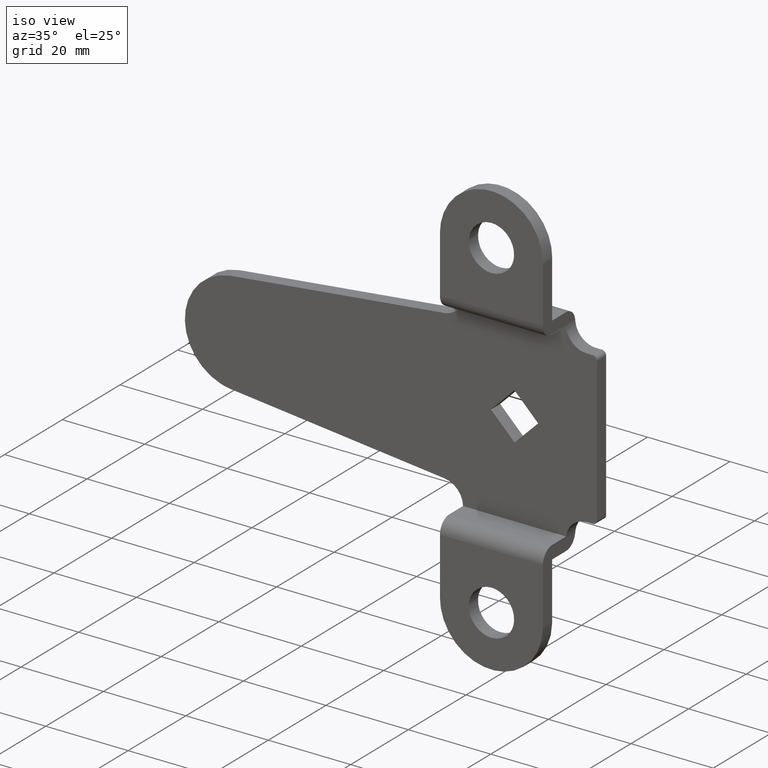
[diagram: clean part render]
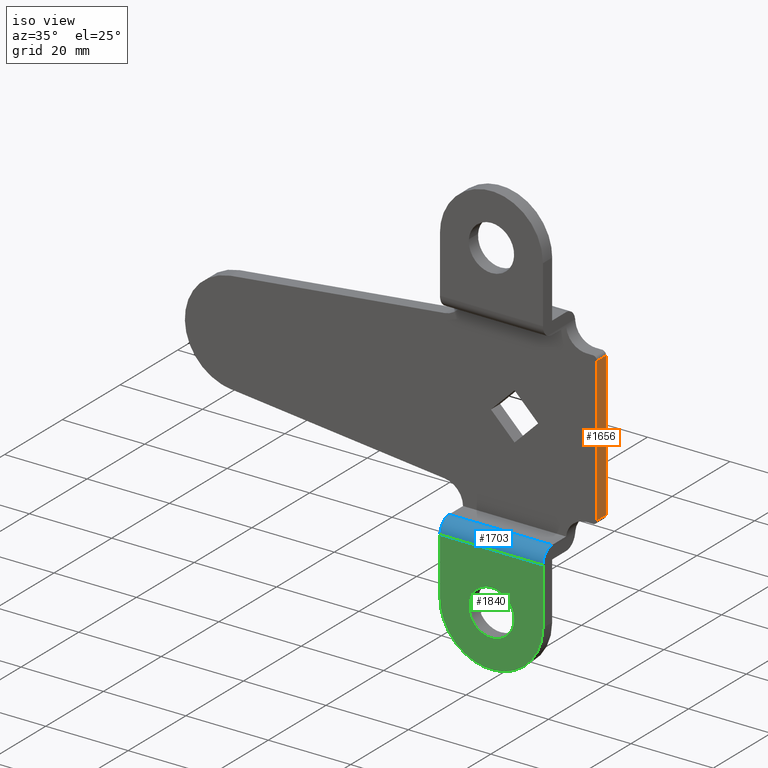
[diagram: same view with three faces highlighted in distinct colors, each labeled with its STEP entity id]
A machine part, iso view with three faces highlighted in distinct colors.
Their STEP definitions:

[orange] entity #1656 — the highlighted face is a freeform B-spline surface patch.
#689=CARTESIAN_POINT('',(20.0,0.0,-17.500000000000000));
#690=VERTEX_POINT('',#689);
#704=CARTESIAN_POINT('',(20.0,-3.200000000000000,-17.500000000000000));
#705=VERTEX_POINT('',#704);
#706=CARTESIAN_POINT('',(20.0,-3.200000000000000,-17.500000000000000));
#707=CARTESIAN_POINT('',(20.0,0.0,-17.500000000000000));
#708=QUASI_UNIFORM_CURVE('',1,(#706,#707),.UNSPECIFIED.,.F.,.U.);
#709=EDGE_CURVE('',#705,#690,#708,.T.);
#1010=CARTESIAN_POINT('',(20.0,-3.200000000000000,17.500000000000000));
#1011=VERTEX_POINT('',#1010);
#1012=CARTESIAN_POINT('',(20.0,0.0,17.500000000000000));
#1013=VERTEX_POINT('',#1012);
#1014=CARTESIAN_POINT('',(20.0,-3.200000000000000,17.500000000000000));
#1015=CARTESIAN_POINT('',(20.0,0.0,17.500000000000000));
#1016=QUASI_UNIFORM_CURVE('',1,(#1014,#1015),.UNSPECIFIED.,.F.,.U.);
#1017=EDGE_CURVE('',#1011,#1013,#1016,.T.);
#1637=CARTESIAN_POINT('',(20.0,-3.359840053876400,19.248249932163208));
#1638=CARTESIAN_POINT('',(20.0,0.159840082486629,19.248249932163208));
#1639=CARTESIAN_POINT('',(20.0,-3.359840053876400,-19.248250870936360));
#1640=CARTESIAN_POINT('',(20.0,0.159840082486629,-19.248250870936360));
#1641=B_SPLINE_SURFACE_WITH_KNOTS('',1,1,((#1637,#1639),(#1638,#1640)),.UNSPECIFIED.,.F.,.F.,.U.,(2,2),(2,2),(0.0,3.519680136363030),(0.0,38.496500803099579),.UNSPECIFIED.);
#1642=CARTESIAN_POINT('',(20.0,-3.200000000000000,-17.500000000000000));
#1643=CARTESIAN_POINT('',(20.0,-3.200000000000000,17.500000000000000));
#1644=QUASI_UNIFORM_CURVE('',1,(#1642,#1643),.UNSPECIFIED.,.F.,.U.);
#1645=EDGE_CURVE('',#705,#1011,#1644,.T.);
#1646=ORIENTED_EDGE('',*,*,#1645,.F.);
#1647=ORIENTED_EDGE('',*,*,#709,.T.);
#1648=CARTESIAN_POINT('',(20.0,0.0,17.500000000000000));
#1649=CARTESIAN_POINT('',(20.0,0.0,-17.500000000000000));
#1650=QUASI_UNIFORM_CURVE('',1,(#1648,#1649),.UNSPECIFIED.,.F.,.U.);
#1651=EDGE_CURVE('',#1013,#690,#1650,.T.);
#1652=ORIENTED_EDGE('',*,*,#1651,.F.);
#1653=ORIENTED_EDGE('',*,*,#1017,.F.);
#1654=EDGE_LOOP('',(#1646,#1647,#1652,#1653));
#1655=FACE_OUTER_BOUND('',#1654,.T.);
#1656=ADVANCED_FACE('',(#1655),#1641,.F.);

[blue] entity #1703 — the highlighted face is a freeform B-spline surface patch.
#563=CARTESIAN_POINT('',(-12.500000000000000,-11.199999999999999,-26.199999999999999));
#564=VERTEX_POINT('',#563);
#570=CARTESIAN_POINT('',(-12.500000000000000,-8.813003690028420,-23.105000000000000));
#571=VERTEX_POINT('',#570);
#572=CARTESIAN_POINT('',(-12.500000000000000,-11.199999999999999,-26.199999999999999));
#573=CARTESIAN_POINT('',(-12.500000000000002,-11.200000000000001,-23.732023201321823));
#574=CARTESIAN_POINT('',(-12.500000000000000,-8.813003690028427,-23.104999999999968));
#582=(BOUNDED_CURVE()B_SPLINE_CURVE(2,(#572,#573,#574),.UNSPECIFIED.,.F.,.U.)CURVE()GEOMETRIC_REPRESENTATION_ITEM()QUASI_UNIFORM_CURVE()RATIONAL_B_SPLINE_CURVE((1.0,0.791853412297340,1.0))REPRESENTATION_ITEM(''));
#583=EDGE_CURVE('',#564,#571,#582,.T.);
#615=CARTESIAN_POINT('',(12.500000000000000,-9.717556403731742,-23.500000000000000));
#616=VERTEX_POINT('',#615);
#622=CARTESIAN_POINT('',(12.500000000000000,-11.199999999999999,-26.199999999999999));
#623=VERTEX_POINT('',#622);
#624=CARTESIAN_POINT('',(12.500000000000000,-9.717556403731750,-23.499999999999989));
#625=CARTESIAN_POINT('',(12.499999999999996,-11.199999999999999,-24.443029811830232));
#626=CARTESIAN_POINT('',(12.500000000000000,-11.199999999999999,-26.199999999999999));
#634=(BOUNDED_CURVE()B_SPLINE_CURVE(2,(#624,#625,#626),.UNSPECIFIED.,.F.,.U.)CURVE()GEOMETRIC_REPRESENTATION_ITEM()QUASI_UNIFORM_CURVE()RATIONAL_B_SPLINE_CURVE((1.0,0.876566134460536,1.0))REPRESENTATION_ITEM(''));
#635=EDGE_CURVE('',#616,#623,#634,.T.);
#742=CARTESIAN_POINT('',(-12.501095239808000,-8.0,-23.0));
#743=VERTEX_POINT('',#742);
#744=CARTESIAN_POINT('',(-12.501095239807960,-8.0,-23.0));
#745=CARTESIAN_POINT('',(-12.501095239807960,-8.137760998257090,-23.0));
#746=CARTESIAN_POINT('',(-12.500886997031930,-8.274377623928046,-23.008858581519171));
#747=CARTESIAN_POINT('',(-12.500338886176371,-8.545378610457734,-23.043858557587850));
#748=CARTESIAN_POINT('',(-12.499997511682340,-8.679762971284491,-23.069999936671771));
#749=CARTESIAN_POINT('',(-12.500000000000000,-8.813003690028420,-23.105000000000000));
#750=B_SPLINE_CURVE_WITH_KNOTS('',3,(#744,#745,#746,#747,#748,#749),.UNSPECIFIED.,.F.,.U.,(4,2,4),(0.0,0.500000000000000,1.0),.UNSPECIFIED.);
#751=EDGE_CURVE('',#743,#571,#750,.T.);
#860=CARTESIAN_POINT('',(12.525062814466899,-8.0,-23.0));
#861=VERTEX_POINT('',#860);
#867=CARTESIAN_POINT('',(12.500000000000000,-9.717556403731749,-23.499999999999989));
#868=CARTESIAN_POINT('',(12.500000000000011,-9.590501240180474,-23.419176144524190));
#869=CARTESIAN_POINT('',(12.501936393128039,-9.458057076435557,-23.347458277583890));
#870=CARTESIAN_POINT('',(12.505969036124339,-9.251170430833462,-23.253764481227769));
#871=CARTESIAN_POINT('',(12.507511856022360,-9.180554530806054,-23.224760821489109));
#872=CARTESIAN_POINT('',(12.510690475275499,-9.038213780305348,-23.172151041426119));
#873=CARTESIAN_POINT('',(12.512325383083610,-8.966469291200347,-23.148507205602961));
#874=CARTESIAN_POINT('',(12.517041994099101,-8.749546923688566,-23.085378984603331));
#875=CARTESIAN_POINT('',(12.519915645751061,-8.602688076141398,-23.053659634541649));
#876=CARTESIAN_POINT('',(12.522924569643630,-8.379018313455598,-23.021632845127201));
#877=CARTESIAN_POINT('',(12.523715784212991,-8.303896161860262,-23.013558861833019));
#878=CARTESIAN_POINT('',(12.524785760148200,-8.152493213192981,-23.002734633452150));
#879=CARTESIAN_POINT('',(12.525062814466891,-8.076192328563536,-23.0));
#880=CARTESIAN_POINT('',(12.525062814466899,-8.0,-23.0));
#881=B_SPLINE_CURVE_WITH_KNOTS('',3,(#867,#868,#869,#870,#871,#872,#873,#874,#875,#876,#877,#878,#879,#880),.UNSPECIFIED.,.F.,.U.,(4,2,2,2,2,2,4),(0.0,0.250000000000000,0.374999999999998,0.499999999999997,0.749999999999998,0.874999999999999,1.0),.UNSPECIFIED.);
#882=EDGE_CURVE('',#616,#861,#881,.T.);
#1669=CARTESIAN_POINT('',(-12.501095239808000,-8.0,-23.0));
#1670=CARTESIAN_POINT('',(12.525062814466899,-8.0,-23.0));
#1671=QUASI_UNIFORM_CURVE('',1,(#1669,#1670),.UNSPECIFIED.,.F.,.U.);
#1672=EDGE_CURVE('',#743,#861,#1671,.T.);
#1677=CARTESIAN_POINT('',(-13.126749191164871,-11.198903439921780,-26.283766234585201));
#1678=CARTESIAN_POINT('',(13.166358114607700,-11.198903439921780,-26.283766234585201));
#1679=CARTESIAN_POINT('',(-13.126749191164873,-11.290318243827173,-22.792775716498820));
#1680=CARTESIAN_POINT('',(13.166358114607696,-11.290318243827173,-22.792775716498820));
#1681=CARTESIAN_POINT('',(-13.126749191164871,-7.804644673488465,-23.005968645050029));
#1682=CARTESIAN_POINT('',(13.166358114607700,-7.804644673488465,-23.005968645050029));
#1690=(BOUNDED_SURFACE()B_SPLINE_SURFACE(1,2,((#1677,#1679,#1681),(#1678,#1680,#1682)),.UNSPECIFIED.,.F.,.F.,.U.)B_SPLINE_SURFACE_WITH_KNOTS((2,2),(3,3),(0.0,26.293107305772569),(0.0,5.632134795415461),.UNSPECIFIED.)GEOMETRIC_REPRESENTATION_ITEM()RATIONAL_B_SPLINE_SURFACE(((1.0,0.675590207615660,1.0),(1.0,0.675590207615660,1.0)))REPRESENTATION_ITEM('')SURFACE());
#1691=ORIENTED_EDGE('',*,*,#635,.F.);
#1692=ORIENTED_EDGE('',*,*,#882,.T.);
#1693=ORIENTED_EDGE('',*,*,#1672,.F.);
#1694=ORIENTED_EDGE('',*,*,#751,.T.);
#1695=ORIENTED_EDGE('',*,*,#583,.F.);
#1696=CARTESIAN_POINT('',(-12.500000000000000,-11.199999999999999,-26.199999999999999));
#1697=CARTESIAN_POINT('',(12.500000000000000,-11.199999999999999,-26.199999999999999));
#1698=QUASI_UNIFORM_CURVE('',1,(#1696,#1697),.UNSPECIFIED.,.F.,.U.);
#1699=EDGE_CURVE('',#564,#623,#1698,.T.);
#1700=ORIENTED_EDGE('',*,*,#1699,.T.);
#1701=EDGE_LOOP('',(#1691,#1692,#1693,#1694,#1695,#1700));
#1702=FACE_OUTER_BOUND('',#1701,.T.);
#1703=ADVANCED_FACE('',(#1702),#1690,.T.);

[green] entity #1840 — the highlighted face is a freeform B-spline surface patch.
#62=CARTESIAN_POINT('',(0.0,-11.199999999999999,-34.500000000000000));
#63=VERTEX_POINT('',#62);
#64=CARTESIAN_POINT('',(-5.483045335519360,-11.199999999999999,-39.568474973333657));
#65=VERTEX_POINT('',#64);
#66=CARTESIAN_POINT('',(0.0,-11.199999999999999,-34.500000000000000));
#67=CARTESIAN_POINT('',(-5.084147703816574,-11.200000000000001,-34.500000000000000));
#68=CARTESIAN_POINT('',(-5.483045335519360,-11.199999999999998,-39.568474973333664));
#76=(BOUNDED_CURVE()B_SPLINE_CURVE(2,(#66,#67,#68),.UNSPECIFIED.,.F.,.U.)B_SPLINE_CURVE_WITH_KNOTS((3,3),(0.0,0.236331300622563),.UNSPECIFIED.)CURVE()GEOMETRIC_REPRESENTATION_ITEM()RATIONAL_B_SPLINE_CURVE((1.0,0.723120658617151,0.969723356150521))REPRESENTATION_ITEM(''));
#77=EDGE_CURVE('',#63,#65,#76,.T.);
#118=CARTESIAN_POINT('',(5.483045335519360,-11.199999999999999,-40.431525026666343));
#119=VERTEX_POINT('',#118);
#125=CARTESIAN_POINT('',(5.483045335519360,-11.200000000000001,-40.431525026666343));
#126=CARTESIAN_POINT('',(5.500000000000000,-11.199999999999996,-40.216095588706125));
#127=CARTESIAN_POINT('',(5.500000000000000,-11.199999999999999,-40.0));
#128=CARTESIAN_POINT('',(5.500000000000001,-11.199999999999999,-34.500000000000000));
#129=CARTESIAN_POINT('',(0.0,-11.199999999999999,-34.500000000000000));
#137=(BOUNDED_CURVE()B_SPLINE_CURVE(2,(#125,#126,#127,#128,#129),.UNSPECIFIED.,.F.,.U.)B_SPLINE_CURVE_WITH_KNOTS((3,2,3),(0.736331300622563,0.750000000000000,1.0),.UNSPECIFIED.)CURVE()GEOMETRIC_REPRESENTATION_ITEM()RATIONAL_B_SPLINE_CURVE((0.969723356150520,0.983986122569396,1.0,0.707106781186548,1.0))REPRESENTATION_ITEM(''));
#138=EDGE_CURVE('',#119,#63,#137,.T.);
#161=CARTESIAN_POINT('',(0.0,-11.199999999999999,-45.500000000000000));
#162=VERTEX_POINT('',#161);
#163=CARTESIAN_POINT('',(-5.483045335519361,-11.199999999999998,-39.568474973333664));
#164=CARTESIAN_POINT('',(-5.500000000000001,-11.200000000000003,-39.783904411293875));
#165=CARTESIAN_POINT('',(-5.500000000000000,-11.199999999999999,-40.0));
#166=CARTESIAN_POINT('',(-5.500000000000001,-11.199999999999999,-45.500000000000014));
#167=CARTESIAN_POINT('',(0.0,-11.199999999999999,-45.500000000000000));
#175=(BOUNDED_CURVE()B_SPLINE_CURVE(2,(#163,#164,#165,#166,#167),.UNSPECIFIED.,.F.,.U.)B_SPLINE_CURVE_WITH_KNOTS((3,2,3),(0.236331300622563,0.250000000000000,0.500000000000000),.UNSPECIFIED.)CURVE()GEOMETRIC_REPRESENTATION_ITEM()RATIONAL_B_SPLINE_CURVE((0.969723356150521,0.983986122569396,1.0,0.707106781186548,1.0))REPRESENTATION_ITEM(''));
#176=EDGE_CURVE('',#65,#162,#175,.T.);
#178=CARTESIAN_POINT('',(0.0,-11.199999999999999,-45.500000000000000));
#179=CARTESIAN_POINT('',(5.084147703816578,-11.199999999999999,-45.500000000000000));
#180=CARTESIAN_POINT('',(5.483045335519360,-11.199999999999994,-40.431525026666350));
#188=(BOUNDED_CURVE()B_SPLINE_CURVE(2,(#178,#179,#180),.UNSPECIFIED.,.F.,.U.)B_SPLINE_CURVE_WITH_KNOTS((3,3),(0.500000000000000,0.736331300622563),.UNSPECIFIED.)CURVE()GEOMETRIC_REPRESENTATION_ITEM()RATIONAL_B_SPLINE_CURVE((1.0,0.723120658617151,0.969723356150521))REPRESENTATION_ITEM(''));
#189=EDGE_CURVE('',#162,#119,#188,.T.);
#556=CARTESIAN_POINT('',(-12.500000000000000,-11.199999999999999,-40.0));
#557=VERTEX_POINT('',#556);
#563=CARTESIAN_POINT('',(-12.500000000000000,-11.199999999999999,-26.199999999999999));
#564=VERTEX_POINT('',#563);
#565=CARTESIAN_POINT('',(-12.500000000000000,-11.199999999999999,-40.0));
#566=CARTESIAN_POINT('',(-12.500000000000000,-11.199999999999999,-26.199999999999999));
#567=QUASI_UNIFORM_CURVE('',1,(#565,#566),.UNSPECIFIED.,.F.,.U.);
#568=EDGE_CURVE('',#557,#564,#567,.T.);
#622=CARTESIAN_POINT('',(12.500000000000000,-11.199999999999999,-26.199999999999999));
#623=VERTEX_POINT('',#622);
#637=CARTESIAN_POINT('',(12.500000000000000,-11.199999999999999,-40.0));
#638=VERTEX_POINT('',#637);
#639=CARTESIAN_POINT('',(12.500000000000000,-11.199999999999999,-26.199999999999999));
#640=CARTESIAN_POINT('',(12.500000000000000,-11.199999999999999,-40.0));
#641=QUASI_UNIFORM_CURVE('',1,(#639,#640),.UNSPECIFIED.,.F.,.U.);
#642=EDGE_CURVE('',#623,#638,#641,.T.);
#914=CARTESIAN_POINT('',(12.500000000000000,-11.199999999999999,-40.0));
#915=CARTESIAN_POINT('',(12.499999999999998,-11.199999999999999,-52.500000000000014));
#916=CARTESIAN_POINT('',(0.0,-11.199999999999999,-52.500000000000007));
#917=CARTESIAN_POINT('',(-12.499999999999998,-11.199999999999999,-52.500000000000014));
#918=CARTESIAN_POINT('',(-12.500000000000000,-11.199999999999999,-40.0));
#926=(BOUNDED_CURVE()B_SPLINE_CURVE(2,(#914,#915,#916,#917,#918),.UNSPECIFIED.,.F.,.U.)B_SPLINE_CURVE_WITH_KNOTS((3,2,3),(0.0,0.500000000000000,1.0),.UNSPECIFIED.)CURVE()GEOMETRIC_REPRESENTATION_ITEM()RATIONAL_B_SPLINE_CURVE((1.0,0.707106781186547,1.0,0.707106781186547,1.0))REPRESENTATION_ITEM(''));
#927=EDGE_CURVE('',#638,#557,#926,.T.);
#1696=CARTESIAN_POINT('',(-12.500000000000000,-11.199999999999999,-26.199999999999999));
#1697=CARTESIAN_POINT('',(12.500000000000000,-11.199999999999999,-26.199999999999999));
#1698=QUASI_UNIFORM_CURVE('',1,(#1696,#1697),.UNSPECIFIED.,.F.,.U.);
#1699=EDGE_CURVE('',#564,#623,#1698,.T.);
#1823=CARTESIAN_POINT('',(-13.748749951545150,-11.199999999999999,-53.813684855063329));
#1824=CARTESIAN_POINT('',(-13.748749951545150,-11.199999999999999,-24.886316320638201));
#1825=CARTESIAN_POINT('',(13.748750622097401,-11.199999999999999,-53.813684855063329));
#1826=CARTESIAN_POINT('',(13.748750622097401,-11.199999999999999,-24.886316320638201));
#1827=B_SPLINE_SURFACE_WITH_KNOTS('',1,1,((#1823,#1825),(#1824,#1826)),.UNSPECIFIED.,.F.,.F.,.U.,(2,2),(2,2),(0.0,28.927368534425131),(0.0,27.497500573642551),.UNSPECIFIED.);
#1828=ORIENTED_EDGE('',*,*,#927,.F.);
#1829=ORIENTED_EDGE('',*,*,#642,.F.);
#1830=ORIENTED_EDGE('',*,*,#1699,.F.);
#1831=ORIENTED_EDGE('',*,*,#568,.F.);
#1832=EDGE_LOOP('',(#1828,#1829,#1830,#1831));
#1833=FACE_OUTER_BOUND('',#1832,.T.);
#1834=ORIENTED_EDGE('',*,*,#189,.F.);
#1835=ORIENTED_EDGE('',*,*,#176,.F.);
#1836=ORIENTED_EDGE('',*,*,#77,.F.);
#1837=ORIENTED_EDGE('',*,*,#138,.F.);
#1838=EDGE_LOOP('',(#1834,#1835,#1836,#1837));
#1839=FACE_BOUND('',#1838,.T.);
#1840=ADVANCED_FACE('',(#1833,#1839),#1827,.F.);